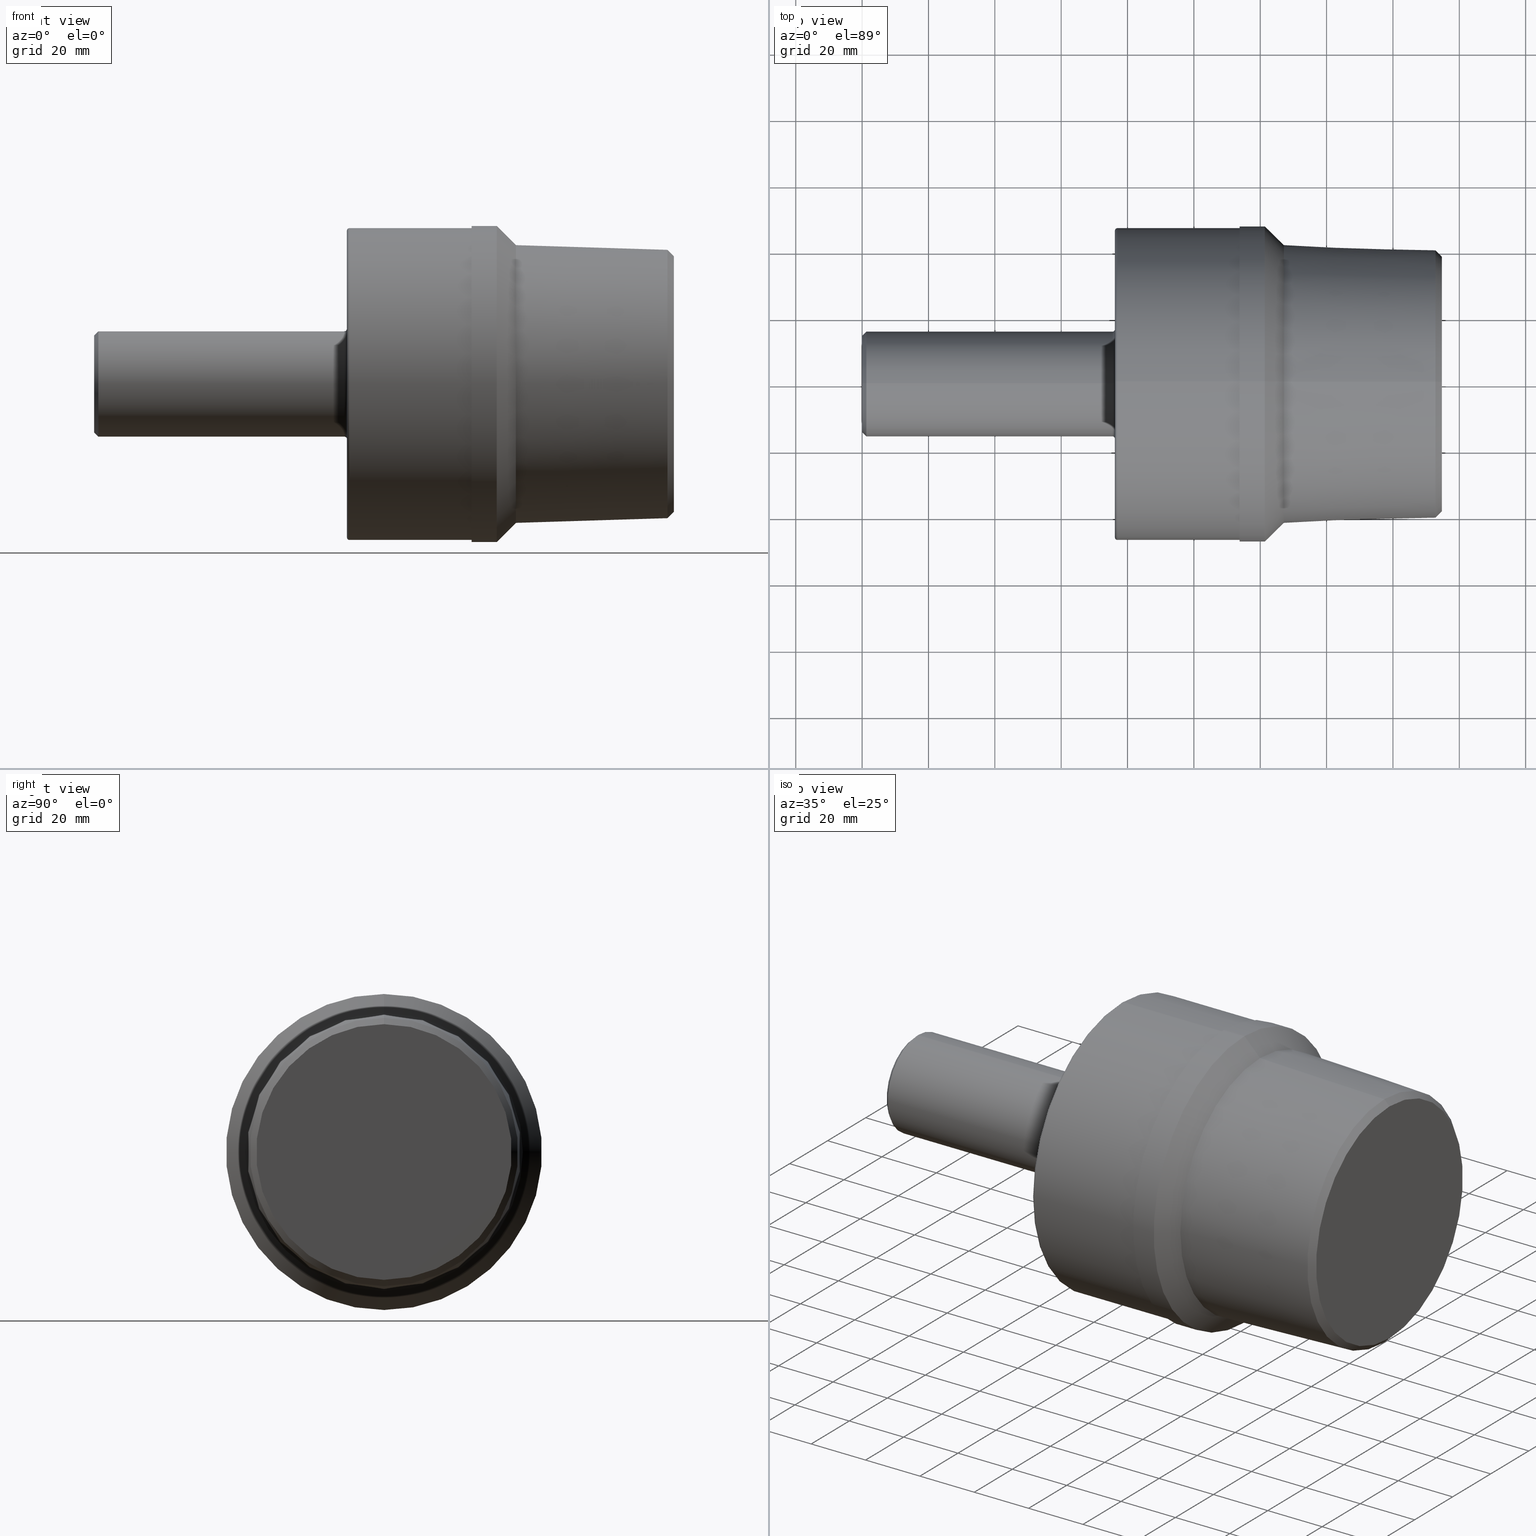
[diagram: canonical four-view strip — front | top / right | iso, engineering-drawing reading convention]
A machine part, canonical four-view strip (front | top / right | iso — engineering-drawing reading convention). The complete STEP part file that produces these views, byte-faithful:
ISO-10303-21;
HEADER;
FILE_DESCRIPTION (( 'STEP AP214' ),
    '1' );
FILE_NAME ('PRSS-11.STEP',
    '2019-03-07T22:15:26',
    ( '' ),
    ( '' ),
    'SwSTEP 2.0',
    'SolidWorks 2018',
    '' );
FILE_SCHEMA (( 'AUTOMOTIVE_DESIGN' ));
ENDSEC;

DATA;
#1 = CIRCLE ( 'NONE', #607, 1.820000000000000284 ) ;
#2 = CARTESIAN_POINT ( 'NONE',  ( 0.0000000000000000000, 7.346043824685398525E-17, 0.5748500000000001942 ) ) ;
#3 = ORIENTED_EDGE ( 'NONE', *, *, #405, .T. ) ;
#4 = EDGE_CURVE ( 'NONE', #147, #195, #303, .T. ) ;
#5 = LINE ( 'NONE', #283, #240 ) ;
#6 = AXIS2_PLACEMENT_3D ( 'NONE', #342, #203, #318 ) ;
#7 = CIRCLE ( 'NONE', #337, 1.647999999999999909 ) ;
#8 = AXIS2_PLACEMENT_3D ( 'NONE', #498, #500, #566 ) ;
#9 = LINE ( 'NONE', #271, #125 ) ;
#10 = EDGE_CURVE ( 'NONE', #487, #107, #369, .T. ) ;
#11 = FACE_OUTER_BOUND ( 'NONE', #471, .T. ) ;
#12 = CIRCLE ( 'NONE', #292, 0.5748500000000001942 ) ;
#13 = ORIENTED_EDGE ( 'NONE', *, *, #66, .T. ) ;
#14 = DIRECTION ( 'NONE',  ( 0.0000000000000000000, 0.0000000000000000000, 1.000000000000000000 ) ) ;
#15 = ORIENTED_EDGE ( 'NONE', *, *, #437, .T. ) ;
#16 = EDGE_CURVE ( 'NONE', #415, #177, #154, .T. ) ;
#17 = CARTESIAN_POINT ( 'NONE',  ( 0.05000000000000000278, 0.0000000000000000000, 0.0000000000000000000 ) ) ;
#18 = APPLICATION_PROTOCOL_DEFINITION ( 'draft international standard', 'automotive_design', 1998, #288 ) ;
#19 = EDGE_CURVE ( 'NONE', #107, #487, #553, .T. ) ;
#20 = ORIENTED_EDGE ( 'NONE', *, *, #395, .T. ) ;
#21 = EDGE_CURVE ( 'NONE', #46, #307, #250, .T. ) ;
#22 = DIRECTION ( 'NONE',  ( 0.0000000000000000000, 0.0000000000000000000, 1.000000000000000000 ) ) ;
#23 = DIRECTION ( 'NONE',  ( -1.000000000000000000, -0.0000000000000000000, -0.0000000000000000000 ) ) ;
#24 = DIRECTION ( 'NONE',  ( 0.0000000000000000000, 0.0000000000000000000, 1.000000000000000000 ) ) ;
#25 = CONICAL_SURFACE ( 'NONE', #380, 1.647999999999999909, 0.7853981633974507215 ) ;
#26 = CARTESIAN_POINT ( 'NONE',  ( 0.0000000000000000000, 0.0000000000000000000, 1.850000000000000311 ) ) ;
#27 = EDGE_LOOP ( 'NONE', ( #162, #241, #426, #131 ) ) ;
#28 = VECTOR ( 'NONE', #516, 39.37007874015748854 ) ;
#29 = DIRECTION ( 'NONE',  ( 0.0000000000000000000, 0.0000000000000000000, 1.000000000000000000 ) ) ;
#30 = ORIENTED_EDGE ( 'NONE', *, *, #323, .T. ) ;
#31 = CARTESIAN_POINT ( 'NONE',  ( 3.000000000000000444, 0.0000000000000000000, 1.820000000000000284 ) ) ;
#32 = ADVANCED_FACE ( 'NONE', ( #329 ), #158, .F. ) ;
#33 = FACE_OUTER_BOUND ( 'NONE', #276, .T. ) ;
#34 = DIRECTION ( 'NONE',  ( 0.0000000000000000000, 0.0000000000000000000, 1.000000000000000000 ) ) ;
#35 = CIRCLE ( 'NONE', #581, 0.02999999999999954439 ) ;
#36 = EDGE_CURVE ( 'NONE', #307, #177, #49, .T. ) ;
#37 = CARTESIAN_POINT ( 'NONE',  ( 0.05000000000000000278, 0.0000000000000000000, -0.6248500000000000165 ) ) ;
#38 = ADVANCED_FACE ( 'NONE', ( #399 ), #594, .F. ) ;
#39 = VERTEX_POINT ( 'NONE', #414 ) ;
#40 = ADVANCED_FACE ( 'NONE', ( #529 ), #517, .T. ) ;
#41 = DIRECTION ( 'NONE',  ( 0.0000000000000000000, 0.0000000000000000000, -1.000000000000000000 ) ) ;
#42 = DIRECTION ( 'NONE',  ( 0.7071067811865489050, 0.0000000000000000000, -0.7071067811865461294 ) ) ;
#43 = AXIS2_PLACEMENT_3D ( 'NONE', #351, #545, #221 ) ;
#44 =( GEOMETRIC_REPRESENTATION_CONTEXT ( 3 ) GLOBAL_UNCERTAINTY_ASSIGNED_CONTEXT ( ( #453 ) ) GLOBAL_UNIT_ASSIGNED_CONTEXT ( ( #384, #349, #382 ) ) REPRESENTATION_CONTEXT ( 'NONE', 'WORKASPACE' ) );
#45 = CARTESIAN_POINT ( 'NONE',  ( 4.778000000000000469, 0.0000000000000000000, 1.875000000000000000 ) ) ;
#46 = VERTEX_POINT ( 'NONE', #306 ) ;
#47 = VERTEX_POINT ( 'NONE', #604 ) ;
#48 = AXIS2_PLACEMENT_3D ( 'NONE', #181, #261, #34 ) ;
#49 = LINE ( 'NONE', #83, #28 ) ;
#50 = ORIENTED_EDGE ( 'NONE', *, *, #4, .T. ) ;
#51 = DIRECTION ( 'NONE',  ( -1.000000000000000000, -0.0000000000000000000, -0.0000000000000000000 ) ) ;
#52 = ORIENTED_EDGE ( 'NONE', *, *, #75, .F. ) ;
#53 = EDGE_CURVE ( 'NONE', #317, #434, #429, .T. ) ;
#54 = AXIS2_PLACEMENT_3D ( 'NONE', #257, #339, #291 ) ;
#55 = VECTOR ( 'NONE', #569, 39.37007874015748854 ) ;
#56 = ORIENTED_EDGE ( 'NONE', *, *, #19, .T. ) ;
#57 = ORIENTED_EDGE ( 'NONE', *, *, #577, .T. ) ;
#58 = EDGE_CURVE ( 'NONE', #487, #104, #417, .T. ) ;
#59 = ORIENTED_EDGE ( 'NONE', *, *, #323, .F. ) ;
#60 = AXIS2_PLACEMENT_3D ( 'NONE', #492, #114, #543 ) ;
#61 = ORIENTED_EDGE ( 'NONE', *, *, #556, .F. ) ;
#62 = CARTESIAN_POINT ( 'NONE',  ( 2.970000000000000195, 0.0000000000000000000, 0.6248500000000007937 ) ) ;
#63 = ORIENTED_EDGE ( 'NONE', *, *, #521, .F. ) ;
#64 = DIRECTION ( 'NONE',  ( 0.0000000000000000000, 0.0000000000000000000, 1.000000000000000000 ) ) ;
#65 = CIRCLE ( 'NONE', #60, 1.592061653312734970 ) ;
#66 = EDGE_CURVE ( 'NONE', #177, #415, #7, .T. ) ;
#67 = DIRECTION ( 'NONE',  ( -1.000000000000000000, -0.0000000000000000000, -0.0000000000000000000 ) ) ;
#68 = CYLINDRICAL_SURFACE ( 'NONE', #82, 0.6248500000000004606 ) ;
#69 = ORIENTED_EDGE ( 'NONE', *, *, #447, .F. ) ;
#70 = DIRECTION ( 'NONE',  ( -0.7071067811865457964, 8.659560562354953812E-17, -0.7071067811865492381 ) ) ;
#71 = ORIENTED_EDGE ( 'NONE', *, *, #437, .F. ) ;
#72 = PLANE ( 'NONE',  #514 ) ;
#73 = FACE_OUTER_BOUND ( 'NONE', #263, .T. ) ;
#74 = DIRECTION ( 'NONE',  ( -1.000000000000000000, -0.0000000000000000000, -0.0000000000000000000 ) ) ;
#75 = EDGE_CURVE ( 'NONE', #536, #434, #249, .T. ) ;
#76 = FILL_AREA_STYLE_COLOUR ( '', #230 ) ;
#77 = ORIENTED_EDGE ( 'NONE', *, *, #313, .F. ) ;
#78 = DIRECTION ( 'NONE',  ( -1.000000000000000000, -0.0000000000000000000, -0.0000000000000000000 ) ) ;
#79 = CARTESIAN_POINT ( 'NONE',  ( 3.030000000000000249, 0.0000000000000000000, 0.0000000000000000000 ) ) ;
#80 = ORIENTED_EDGE ( 'NONE', *, *, #525, .T. ) ;
#81 = EDGE_LOOP ( 'NONE', ( #580, #576, #568, #385 ) ) ;
#82 = AXIS2_PLACEMENT_3D ( 'NONE', #212, #134, #368 ) ;
#83 = CARTESIAN_POINT ( 'NONE',  ( 6.805000000000000604, 1.949713207774683978E-16, -1.592061653312734970 ) ) ;
#84 = CARTESIAN_POINT ( 'NONE',  ( 6.805000000000000604, 0.0000000000000000000, 0.0000000000000000000 ) ) ;
#85 = CARTESIAN_POINT ( 'NONE',  ( 3.030000000000000249, 2.228857174448183325E-16, -1.820000000000000284 ) ) ;
#86 = CARTESIAN_POINT ( 'NONE',  ( 4.778000000000000469, 0.0000000000000000000, 0.0000000000000000000 ) ) ;
#87 = ORIENTED_EDGE ( 'NONE', *, *, #225, .T. ) ;
#88 = ADVANCED_FACE ( 'NONE', ( #73 ), #115, .T. ) ;
#89 = FACE_OUTER_BOUND ( 'NONE', #81, .T. ) ;
#90 = DIRECTION ( 'NONE',  ( 0.0000000000000000000, 0.0000000000000000000, 1.000000000000000000 ) ) ;
#91 = AXIS2_PLACEMENT_3D ( 'NONE', #228, #457, #505 ) ;
#92 = CARTESIAN_POINT ( 'NONE',  ( 6.879999999999999893, 1.517061653312734126, 0.0000000000000000000 ) ) ;
#93 = DIRECTION ( 'NONE',  ( 0.0000000000000000000, 0.0000000000000000000, 1.000000000000000000 ) ) ;
#94 = AXIS2_PLACEMENT_3D ( 'NONE', #366, #353, #563 ) ;
#95 = AXIS2_PLACEMENT_3D ( 'NONE', #120, #155, #64 ) ;
#96 = DIRECTION ( 'NONE',  ( 0.0000000000000000000, 0.0000000000000000000, 1.000000000000000000 ) ) ;
#97 = ADVANCED_FACE ( 'NONE', ( #206 ), #477, .T. ) ;
#98 = CARTESIAN_POINT ( 'NONE',  ( 2.970000000000000195, 0.0000000000000000000, 0.0000000000000000000 ) ) ;
#99 = ORIENTED_EDGE ( 'NONE', *, *, #577, .F. ) ;
#100 = EDGE_LOOP ( 'NONE', ( #174, #191, #462, #528 ) ) ;
#101 = VECTOR ( 'NONE', #361, 39.37007874015748143 ) ;
#102 = AXIS2_PLACEMENT_3D ( 'NONE', #17, #328, #113 ) ;
#103 = CIRCLE ( 'NONE', #526, 0.6248500000000007937 ) ;
#104 = VERTEX_POINT ( 'NONE', #319 ) ;
#105 = ORIENTED_EDGE ( 'NONE', *, *, #473, .T. ) ;
#106 = CIRCLE ( 'NONE', #207, 1.592061653312734970 ) ;
#107 = VERTEX_POINT ( 'NONE', #45 ) ;
#108 = PRESENTATION_STYLE_ASSIGNMENT (( #484 ) ) ;
#109 = EDGE_LOOP ( 'NONE', ( #184, #57 ) ) ;
#110 = SURFACE_STYLE_USAGE ( .BOTH. , #284 ) ;
#111 = EDGE_LOOP ( 'NONE', ( #309, #259 ) ) ;
#112 =( GEOMETRIC_REPRESENTATION_CONTEXT ( 3 ) GLOBAL_UNCERTAINTY_ASSIGNED_CONTEXT ( ( #524 ) ) GLOBAL_UNIT_ASSIGNED_CONTEXT ( ( #411, #539, #443 ) ) REPRESENTATION_CONTEXT ( 'NONE', 'WORKASPACE' ) );
#113 = DIRECTION ( 'NONE',  ( 0.0000000000000000000, 0.0000000000000000000, 1.000000000000000000 ) ) ;
#114 = DIRECTION ( 'NONE',  ( -1.000000000000000000, -0.0000000000000000000, -0.0000000000000000000 ) ) ;
#115 = CONICAL_SURFACE ( 'NONE', #389, 1.517061653312734126, 0.7853981633974556065 ) ;
#116 = CIRCLE ( 'NONE', #54, 1.850000000000000311 ) ;
#117 = CARTESIAN_POINT ( 'NONE',  ( 4.479999999999999538, 0.0000000000000000000, 0.0000000000000000000 ) ) ;
#118 = CARTESIAN_POINT ( 'NONE',  ( 0.0000000000000000000, 0.0000000000000000000, 0.0000000000000000000 ) ) ;
#119 = MECHANICAL_DESIGN_GEOMETRIC_PRESENTATION_REPRESENTATION (  '', ( #334 ), #44 ) ;
#120 = CARTESIAN_POINT ( 'NONE',  ( 4.479999999999999538, 0.0000000000000000000, 0.0000000000000000000 ) ) ;
#121 = EDGE_CURVE ( 'NONE', #357, #371, #310, .T. ) ;
#122 = DIRECTION ( 'NONE',  ( -1.000000000000000000, -0.0000000000000000000, -0.0000000000000000000 ) ) ;
#123 = CARTESIAN_POINT ( 'NONE',  ( 5.004999999999999893, 0.0000000000000000000, 0.0000000000000000000 ) ) ;
#124 = ORIENTED_EDGE ( 'NONE', *, *, #58, .T. ) ;
#125 = VECTOR ( 'NONE', #370, 39.37007874015748143 ) ;
#126 = DIRECTION ( 'NONE',  ( 0.0000000000000000000, 0.0000000000000000000, -1.000000000000000000 ) ) ;
#127 = CARTESIAN_POINT ( 'NONE',  ( 6.879999999999999893, 0.0000000000000000000, 0.0000000000000000000 ) ) ;
#128 = CIRCLE ( 'NONE', #102, 0.6248500000000000165 ) ;
#129 = FILL_AREA_STYLE ('',( #76 ) ) ;
#130 = FACE_OUTER_BOUND ( 'NONE', #348, .T. ) ;
#131 = ORIENTED_EDGE ( 'NONE', *, *, #121, .F. ) ;
#132 = ORIENTED_EDGE ( 'NONE', *, *, #19, .F. ) ;
#133 = ADVANCED_FACE ( 'NONE', ( #11 ), #401, .T. ) ;
#134 = DIRECTION ( 'NONE',  ( -1.000000000000000000, -0.0000000000000000000, -0.0000000000000000000 ) ) ;
#135 = ORIENTED_EDGE ( 'NONE', *, *, #525, .F. ) ;
#136 = FACE_OUTER_BOUND ( 'NONE', #223, .T. ) ;
#137 = CARTESIAN_POINT ( 'NONE',  ( 2.970000000000000195, 8.019599564216449926E-17, -0.6548500000000007093 ) ) ;
#138 = AXIS2_PLACEMENT_3D ( 'NONE', #611, #122, #90 ) ;
#139 = DIRECTION ( 'NONE',  ( 0.0000000000000000000, 0.0000000000000000000, 1.000000000000000000 ) ) ;
#140 = DIRECTION ( 'NONE',  ( 1.000000000000000000, 0.0000000000000000000, 0.0000000000000000000 ) ) ;
#141 = LENGTH_MEASURE_WITH_UNIT ( LENGTH_MEASURE( 0.02539999999999999897 ), #490 );
#142 = ORIENTED_EDGE ( 'NONE', *, *, #266, .T. ) ;
#143 = ADVANCED_FACE ( 'NONE', ( #483 ), #373, .T. ) ;
#144 = DIRECTION ( 'NONE',  ( -1.000000000000000000, -0.0000000000000000000, -0.0000000000000000000 ) ) ;
#145 = VECTOR ( 'NONE', #42, 39.37007874015748143 ) ;
#146 = MECHANICAL_DESIGN_GEOMETRIC_PRESENTATION_REPRESENTATION (  '', ( #220 ), #112 ) ;
#147 = VERTEX_POINT ( 'NONE', #293 ) ;
#148 = CIRCLE ( 'NONE', #199, 0.6248500000000007937 ) ;
#149 = VERTEX_POINT ( 'NONE', #247 ) ;
#150 = DIMENSIONAL_EXPONENTS ( 1.000000000000000000, 0.0000000000000000000, 0.0000000000000000000, 0.0000000000000000000, 0.0000000000000000000, 0.0000000000000000000, 0.0000000000000000000 ) ;
#151 = CONICAL_SURFACE ( 'NONE', #362, 0.6248500000000000165, 0.7853981633974463916 ) ;
#152 = AXIS2_PLACEMENT_3D ( 'NONE', #214, #435, #29 ) ;
#153 = PRODUCT_DEFINITION ( 'UNKNOWN', '', #424, #531 ) ;
#154 = CIRCLE ( 'NONE', #605, 1.647999999999999909 ) ;
#155 = DIRECTION ( 'NONE',  ( -1.000000000000000000, -0.0000000000000000000, -0.0000000000000000000 ) ) ;
#156 = CARTESIAN_POINT ( 'NONE',  ( 4.479999999999999538, 0.0000000000000000000, 0.0000000000000000000 ) ) ;
#157 = CIRCLE ( 'NONE', #358, 1.850000000000000311 ) ;
#158 = TOROIDAL_SURFACE ( 'NONE', #612, 0.6548500000000007093, 0.02999999999999961031 ) ;
#159 = DIRECTION ( 'NONE',  ( 0.0000000000000000000, 0.0000000000000000000, -1.000000000000000000 ) ) ;
#160 = AXIS2_PLACEMENT_3D ( 'NONE', #86, #394, #542 ) ;
#161 = DIRECTION ( 'NONE',  ( 0.0000000000000000000, -1.224646799147356412E-16, 1.000000000000000000 ) ) ;
#162 = ORIENTED_EDGE ( 'NONE', *, *, #459, .T. ) ;
#163 = PRESENTATION_LAYER_ASSIGNMENT (  '', '', ( #220 ) ) ;
#164 = FACE_OUTER_BOUND ( 'NONE', #109, .T. ) ;
#165 = ORIENTED_EDGE ( 'NONE', *, *, #473, .F. ) ;
#166 = DIRECTION ( 'NONE',  ( -1.000000000000000000, -0.0000000000000000000, -0.0000000000000000000 ) ) ;
#167 = DIRECTION ( 'NONE',  ( 1.000000000000000000, 0.0000000000000000000, 0.0000000000000000000 ) ) ;
#168 = DIRECTION ( 'NONE',  ( 0.0000000000000000000, 0.0000000000000000000, 1.000000000000000000 ) ) ;
#169 = DIRECTION ( 'NONE',  ( -0.7071067811865423547, 8.659560562354995721E-17, -0.7071067811865526798 ) ) ;
#170 = DIRECTION ( 'NONE',  ( -1.000000000000000000, -0.0000000000000000000, -0.0000000000000000000 ) ) ;
#171 = AXIS2_PLACEMENT_3D ( 'NONE', #583, #218, #551 ) ;
#172 = ORIENTED_EDGE ( 'NONE', *, *, #344, .T. ) ;
#173 = VERTEX_POINT ( 'NONE', #295 ) ;
#174 = ORIENTED_EDGE ( 'NONE', *, *, #53, .F. ) ;
#175 = FACE_OUTER_BOUND ( 'NONE', #111, .T. ) ;
#176 = EDGE_CURVE ( 'NONE', #173, #46, #321, .T. ) ;
#177 = VERTEX_POINT ( 'NONE', #311 ) ;
#178 = CARTESIAN_POINT ( 'NONE',  ( 0.0000000000000000000, 0.0000000000000000000, 0.0000000000000000000 ) ) ;
#179 = CARTESIAN_POINT ( 'NONE',  ( 2.999999999999999556, 1.820000000000000284, 0.0000000000000000000 ) ) ;
#180 = EDGE_CURVE ( 'NONE', #107, #47, #9, .T. ) ;
#181 = CARTESIAN_POINT ( 'NONE',  ( 6.879999999999999893, 0.0000000000000000000, 0.0000000000000000000 ) ) ;
#182 = ADVANCED_BREP_SHAPE_REPRESENTATION ( 'PRSS-11', ( #341, #565 ), #449 ) ;
#183 = CARTESIAN_POINT ( 'NONE',  ( 0.0000000000000000000, 7.652205524472241080E-17, -0.6248500000000004606 ) ) ;
#184 = ORIENTED_EDGE ( 'NONE', *, *, #447, .T. ) ;
#185 = CONICAL_SURFACE ( 'NONE', #8, 1.517061653312734126, 0.7853981633974556065 ) ;
#186 = ADVANCED_FACE ( 'NONE', ( #175 ), #446, .F. ) ;
#187 = DIRECTION ( 'NONE',  ( -1.000000000000000000, -0.0000000000000000000, -0.0000000000000000000 ) ) ;
#188 = AXIS2_PLACEMENT_3D ( 'NONE', #502, #270, #402 ) ;
#189 = DIRECTION ( 'NONE',  ( -1.000000000000000000, -0.0000000000000000000, -0.0000000000000000000 ) ) ;
#190 = CARTESIAN_POINT ( 'NONE',  ( 6.805000000000000604, 0.0000000000000000000, 1.592061653312734970 ) ) ;
#191 = ORIENTED_EDGE ( 'NONE', *, *, #521, .T. ) ;
#192 = DIMENSIONAL_EXPONENTS ( 1.000000000000000000, 0.0000000000000000000, 0.0000000000000000000, 0.0000000000000000000, 0.0000000000000000000, 0.0000000000000000000, 0.0000000000000000000 ) ;
#193 = CYLINDRICAL_SURFACE ( 'NONE', #546, 0.6248500000000004606 ) ;
#194 = ORIENTED_EDGE ( 'NONE', *, *, #537, .F. ) ;
#195 = VERTEX_POINT ( 'NONE', #31 ) ;
#196 = CIRCLE ( 'NONE', #347, 0.6548500000000007093 ) ;
#197 = ORIENTED_EDGE ( 'NONE', *, *, #322, .F. ) ;
#198 = ORIENTED_EDGE ( 'NONE', *, *, #313, .T. ) ;
#199 = AXIS2_PLACEMENT_3D ( 'NONE', #481, #555, #290 ) ;
#200 = LINE ( 'NONE', #591, #541 ) ;
#201 = CARTESIAN_POINT ( 'NONE',  ( 5.004999999999999893, 0.0000000000000000000, 0.0000000000000000000 ) ) ;
#202 = EDGE_LOOP ( 'NONE', ( #105, #20 ) ) ;
#203 = DIRECTION ( 'NONE',  ( -1.000000000000000000, -0.0000000000000000000, -0.0000000000000000000 ) ) ;
#204 = LINE ( 'NONE', #350, #573 ) ;
#205 = ORIENTED_EDGE ( 'NONE', *, *, #405, .F. ) ;
#206 = FACE_OUTER_BOUND ( 'NONE', #602, .T. ) ;
#207 = AXIS2_PLACEMENT_3D ( 'NONE', #84, #78, #352 ) ;
#208 = FACE_OUTER_BOUND ( 'NONE', #422, .T. ) ;
#209 = DIRECTION ( 'NONE',  ( -0.0000000000000000000, 0.0000000000000000000, 1.000000000000000000 ) ) ;
#210 = AXIS2_PLACEMENT_3D ( 'NONE', #316, #74, #314 ) ;
#211 = DIRECTION ( 'NONE',  ( 0.0000000000000000000, 0.0000000000000000000, 1.000000000000000000 ) ) ;
#212 = CARTESIAN_POINT ( 'NONE',  ( 0.0000000000000000000, 0.0000000000000000000, 0.0000000000000000000 ) ) ;
#213 = AXIS2_PLACEMENT_3D ( 'NONE', #332, #345, #22 ) ;
#214 = CARTESIAN_POINT ( 'NONE',  ( 0.0000000000000000000, 0.0000000000000000000, 0.0000000000000000000 ) ) ;
#215 = DIRECTION ( 'NONE',  ( -1.000000000000000000, -0.0000000000000000000, -0.0000000000000000000 ) ) ;
#216 = ORIENTED_EDGE ( 'NONE', *, *, #395, .F. ) ;
#217 = DIRECTION ( 'NONE',  ( 0.0000000000000000000, 0.0000000000000000000, 1.000000000000000000 ) ) ;
#218 = DIRECTION ( 'NONE',  ( -1.000000000000000000, -0.0000000000000000000, -0.0000000000000000000 ) ) ;
#219 = CLOSED_SHELL ( 'NONE', ( #272, #598, #364, #227, #40, #315, #32, #233, #606, #38, #97, #557, #567, #613, #143, #408, #410, #460, #133, #506, #88, #186 ) ) ;
#220 = STYLED_ITEM ( 'NONE', ( #108 ), #182 ) ;
#221 = DIRECTION ( 'NONE',  ( 0.0000000000000000000, 0.0000000000000000000, 1.000000000000000000 ) ) ;
#222 = CIRCLE ( 'NONE', #138, 0.5748500000000001942 ) ;
#223 = EDGE_LOOP ( 'NONE', ( #508, #476, #69, #251 ) ) ;
#224 = APPLICATION_CONTEXT ( 'automotive_design' ) ;
#225 = EDGE_CURVE ( 'NONE', #46, #173, #381, .T. ) ;
#226 = DIRECTION ( 'NONE',  ( -1.000000000000000000, -0.0000000000000000000, -0.0000000000000000000 ) ) ;
#227 = ADVANCED_FACE ( 'NONE', ( #242 ), #520, .T. ) ;
#228 = CARTESIAN_POINT ( 'NONE',  ( 6.805000000000000604, 0.0000000000000000000, 0.0000000000000000000 ) ) ;
#229 = ORIENTED_EDGE ( 'NONE', *, *, #507, .F. ) ;
#230 = COLOUR_RGB ( '',0.7529411764705882248, 0.7529411764705882248, 0.7529411764705882248 ) ;
#231 = PRESENTATION_LAYER_ASSIGNMENT (  '', '', ( #334 ) ) ;
#232 = DIRECTION ( 'NONE',  ( 0.0000000000000000000, 0.0000000000000000000, 1.000000000000000000 ) ) ;
#233 = ADVANCED_FACE ( 'NONE', ( #503 ), #193, .T. ) ;
#234 = AXIS2_PLACEMENT_3D ( 'NONE', #458, #547, #93 ) ;
#235 = DIRECTION ( 'NONE',  ( 1.000000000000000000, 0.0000000000000000000, 0.0000000000000000000 ) ) ;
#236 = CIRCLE ( 'NONE', #376, 1.850000000000000311 ) ;
#237 = ORIENTED_EDGE ( 'NONE', *, *, #282, .F. ) ;
#238 = UNCERTAINTY_MEASURE_WITH_UNIT (LENGTH_MEASURE( 1.000000000000000082E-05 ), #312, 'distance_accuracy_value', 'NONE');
#239 = CARTESIAN_POINT ( 'NONE',  ( 2.970000000000000195, 7.652205524472246010E-17, -0.6248500000000007937 ) ) ;
#240 = VECTOR ( 'NONE', #70, 39.37007874015748143 ) ;
#241 = ORIENTED_EDGE ( 'NONE', *, *, #53, .T. ) ;
#242 = FACE_OUTER_BOUND ( 'NONE', #470, .T. ) ;
#243 = FACE_OUTER_BOUND ( 'NONE', #202, .T. ) ;
#244 = ORIENTED_EDGE ( 'NONE', *, *, #21, .F. ) ;
#245 = AXIS2_PLACEMENT_3D ( 'NONE', #548, #589, #338 ) ;
#246 = CARTESIAN_POINT ( 'NONE',  ( 0.05000000000000000278, 7.652205524472237382E-17, 0.6248500000000000165 ) ) ;
#247 = CARTESIAN_POINT ( 'NONE',  ( 6.805000000000000604, 0.0000000000000000000, 1.592061653312734970 ) ) ;
#248 = DIRECTION ( 'NONE',  ( -0.0000000000000000000, 1.000000000000000000, 1.224646799147353207E-16 ) ) ;
#249 = LINE ( 'NONE', #37, #145 ) ;
#250 = LINE ( 'NONE', #456, #550 ) ;
#251 = ORIENTED_EDGE ( 'NONE', *, *, #4, .F. ) ;
#252 = DIRECTION ( 'NONE',  ( 0.0000000000000000000, 0.0000000000000000000, -1.000000000000000000 ) ) ;
#253 = DIRECTION ( 'NONE',  ( -1.000000000000000000, -0.0000000000000000000, -0.0000000000000000000 ) ) ;
#254 = DIRECTION ( 'NONE',  ( 1.000000000000000000, 0.0000000000000000000, 0.0000000000000000000 ) ) ;
#255 = AXIS2_PLACEMENT_3D ( 'NONE', #79, #67, #24 ) ;
#256 = DIRECTION ( 'NONE',  ( -1.000000000000000000, -0.0000000000000000000, -0.0000000000000000000 ) ) ;
#257 = CARTESIAN_POINT ( 'NONE',  ( 3.030000000000000249, 0.0000000000000000000, 0.0000000000000000000 ) ) ;
#258 = FACE_OUTER_BOUND ( 'NONE', #582, .T. ) ;
#259 = ORIENTED_EDGE ( 'NONE', *, *, #225, .F. ) ;
#260 = PRODUCT_DEFINITION_SHAPE ( 'NONE', 'NONE',  #153 ) ;
#261 = DIRECTION ( 'NONE',  ( -1.000000000000000000, -0.0000000000000000000, -0.0000000000000000000 ) ) ;
#262 = CIRCLE ( 'NONE', #95, 1.850000000000000311 ) ;
#263 = EDGE_LOOP ( 'NONE', ( #244, #87, #575, #510 ) ) ;
#264 = CARTESIAN_POINT ( 'NONE',  ( 3.030000000000000249, 2.265596578422603594E-16, -1.850000000000000311 ) ) ;
#265 = PRESENTATION_STYLE_ASSIGNMENT (( #110 ) ) ;
#266 = EDGE_CURVE ( 'NONE', #297, #371, #379, .T. ) ;
#267 = CARTESIAN_POINT ( 'NONE',  ( 3.000000000000000444, 0.0000000000000000000, 0.0000000000000000000 ) ) ;
#268 = AXIS2_PLACEMENT_3D ( 'NONE', #85, #365, #463 ) ;
#269 = ORIENTED_EDGE ( 'NONE', *, *, #180, .F. ) ;
#270 = DIRECTION ( 'NONE',  ( -1.000000000000000000, -0.0000000000000000000, -0.0000000000000000000 ) ) ;
#271 = CARTESIAN_POINT ( 'NONE',  ( 0.0000000000000000000, 0.0000000000000000000, 1.875000000000000000 ) ) ;
#272 = ADVANCED_FACE ( 'NONE', ( #33 ), #185, .T. ) ;
#273 = CARTESIAN_POINT ( 'NONE',  ( 4.479999999999999538, 2.265596578422603594E-16, -1.850000000000000311 ) ) ;
#274 = DIRECTION ( 'NONE',  ( 0.0000000000000000000, 0.0000000000000000000, -1.000000000000000000 ) ) ;
#275 = ORIENTED_EDGE ( 'NONE', *, *, #266, .F. ) ;
#276 = EDGE_LOOP ( 'NONE', ( #482, #407, #59, #61 ) ) ;
#277 = AXIS2_PLACEMENT_3D ( 'NONE', #156, #586, #493 ) ;
#278 = SURFACE_STYLE_FILL_AREA ( #129 ) ;
#279 = VERTEX_POINT ( 'NONE', #608 ) ;
#280 = ORIENTED_EDGE ( 'NONE', *, *, #377, .T. ) ;
#281 = EDGE_LOOP ( 'NONE', ( #428, #142, #421, #52 ) ) ;
#282 = EDGE_CURVE ( 'NONE', #287, #527, #200, .T. ) ;
#283 = CARTESIAN_POINT ( 'NONE',  ( 5.004999999999999893, 2.018217924994838300E-16, -1.647999999999999909 ) ) ;
#284 = SURFACE_SIDE_STYLE ('',( #378 ) ) ;
#285 = CARTESIAN_POINT ( 'NONE',  ( 4.479999999999999538, 1.850000000000000311, 0.0000000000000000000 ) ) ;
#286 = FACE_OUTER_BOUND ( 'NONE', #281, .T. ) ;
#287 = VERTEX_POINT ( 'NONE', #273 ) ;
#288 = APPLICATION_CONTEXT ( 'automotive_design' ) ;
#289 = AXIS2_PLACEMENT_3D ( 'NONE', #178, #166, #168 ) ;
#290 = DIRECTION ( 'NONE',  ( 0.0000000000000000000, 0.0000000000000000000, 1.000000000000000000 ) ) ;
#291 = DIRECTION ( 'NONE',  ( 0.0000000000000000000, 0.0000000000000000000, 1.000000000000000000 ) ) ;
#292 = AXIS2_PLACEMENT_3D ( 'NONE', #298, #253, #335 ) ;
#293 = CARTESIAN_POINT ( 'NONE',  ( 3.030000000000000249, 0.0000000000000000000, 1.850000000000000311 ) ) ;
#294 = CARTESIAN_POINT ( 'NONE',  ( 5.004999999999999893, 0.0000000000000000000, 1.647999999999999909 ) ) ;
#295 = CARTESIAN_POINT ( 'NONE',  ( 6.879999999999999893, 0.0000000000000000000, 1.517061653312734126 ) ) ;
#296 = EDGE_CURVE ( 'NONE', #317, #39, #301, .T. ) ;
#297 = VERTEX_POINT ( 'NONE', #2 ) ;
#298 = CARTESIAN_POINT ( 'NONE',  ( 0.0000000000000000000, 0.0000000000000000000, 0.0000000000000000000 ) ) ;
#299 = DIRECTION ( 'NONE',  ( -0.7071067811865423547, 0.0000000000000000000, 0.7071067811865526798 ) ) ;
#300 = VECTOR ( 'NONE', #412, 39.37007874015748143 ) ;
#301 = CIRCLE ( 'NONE', #585, 0.02999999999999954439 ) ;
#302 = DIRECTION ( 'NONE',  ( -1.000000000000000000, 0.0000000000000000000, -0.0000000000000000000 ) ) ;
#303 = CIRCLE ( 'NONE', #423, 0.02999999999999995379 ) ;
#304 = FILL_AREA_STYLE ('',( #590 ) ) ;
#305 = LENGTH_MEASURE_WITH_UNIT ( LENGTH_MEASURE( 0.02539999999999999897 ), #396 );
#306 = CARTESIAN_POINT ( 'NONE',  ( 6.879999999999999893, 1.903788952806657656E-16, -1.517061653312734126 ) ) ;
#307 = VERTEX_POINT ( 'NONE', #494 ) ;
#308 = FACE_OUTER_BOUND ( 'NONE', #100, .T. ) ;
#309 = ORIENTED_EDGE ( 'NONE', *, *, #176, .F. ) ;
#310 = LINE ( 'NONE', #340, #540 ) ;
#311 = CARTESIAN_POINT ( 'NONE',  ( 5.004999999999999893, 2.157215336698062520E-16, -1.647999999999999909 ) ) ;
#312 =( CONVERSION_BASED_UNIT ( 'INCH', #141 ) LENGTH_UNIT ( ) NAMED_UNIT ( #192 ) );
#313 = EDGE_CURVE ( 'NONE', #177, #487, #5, .T. ) ;
#314 = DIRECTION ( 'NONE',  ( 0.0000000000000000000, 0.0000000000000000000, 1.000000000000000000 ) ) ;
#315 = ADVANCED_FACE ( 'NONE', ( #136 ), #465, .T. ) ;
#316 = CARTESIAN_POINT ( 'NONE',  ( 5.004999999999999893, 0.0000000000000000000, 0.0000000000000000000 ) ) ;
#317 = VERTEX_POINT ( 'NONE', #239 ) ;
#318 = DIRECTION ( 'NONE',  ( 0.0000000000000000000, 0.0000000000000000000, 1.000000000000000000 ) ) ;
#319 = CARTESIAN_POINT ( 'NONE',  ( 4.479999999999999538, 2.296212748401287479E-16, -1.875000000000000000 ) ) ;
#320 = VECTOR ( 'NONE', #544, 39.37007874015748143 ) ;
#321 = CIRCLE ( 'NONE', #48, 1.517061653312734126 ) ;
#322 = EDGE_CURVE ( 'NONE', #279, #147, #356, .T. ) ;
#323 = EDGE_CURVE ( 'NONE', #149, #307, #106, .T. ) ;
#324 = AXIS2_PLACEMENT_3D ( 'NONE', #372, #445, #431 ) ;
#325 = DIRECTION ( 'NONE',  ( 0.0000000000000000000, 0.0000000000000000000, 1.000000000000000000 ) ) ;
#326 = EDGE_LOOP ( 'NONE', ( #461, #205 ) ) ;
#327 = ORIENTED_EDGE ( 'NONE', *, *, #296, .T. ) ;
#328 = DIRECTION ( 'NONE',  ( -1.000000000000000000, -0.0000000000000000000, -0.0000000000000000000 ) ) ;
#329 = FACE_OUTER_BOUND ( 'NONE', #442, .T. ) ;
#330 = DIRECTION ( 'NONE',  ( 0.0000000000000000000, 0.0000000000000000000, 1.000000000000000000 ) ) ;
#331 = EDGE_LOOP ( 'NONE', ( #172, #398, #609, #197 ) ) ;
#332 = CARTESIAN_POINT ( 'NONE',  ( 0.05000000000000000278, 0.0000000000000000000, 0.0000000000000000000 ) ) ;
#333 = CIRCLE ( 'NONE', #6, 0.6548500000000007093 ) ;
#334 = STYLED_ITEM ( 'NONE', ( #265 ), #341 ) ;
#335 = DIRECTION ( 'NONE',  ( 0.0000000000000000000, 0.0000000000000000000, 1.000000000000000000 ) ) ;
#336 = SURFACE_SIDE_STYLE ('',( #278 ) ) ;
#337 = AXIS2_PLACEMENT_3D ( 'NONE', #123, #23, #554 ) ;
#338 = DIRECTION ( 'NONE',  ( 0.0000000000000000000, 0.0000000000000000000, 1.000000000000000000 ) ) ;
#339 = DIRECTION ( 'NONE',  ( -1.000000000000000000, -0.0000000000000000000, -0.0000000000000000000 ) ) ;
#340 = CARTESIAN_POINT ( 'NONE',  ( 0.0000000000000000000, 0.0000000000000000000, 0.6248500000000004606 ) ) ;
#341 = MANIFOLD_SOLID_BREP ( '2DCA62FF-12D9-4292-ACF0-65A0EE5BC108-GAAFaceID11', #219 ) ;
#342 = CARTESIAN_POINT ( 'NONE',  ( 2.999999999999999556, 0.0000000000000000000, 0.0000000000000000000 ) ) ;
#343 = DIRECTION ( 'NONE',  ( 0.0000000000000000000, -1.000000000000000000, 0.0000000000000000000 ) ) ;
#344 = EDGE_CURVE ( 'NONE', #279, #287, #262, .T. ) ;
#345 = DIRECTION ( 'NONE',  ( -1.000000000000000000, -0.0000000000000000000, -0.0000000000000000000 ) ) ;
#346 = DIRECTION ( 'NONE',  ( 0.0000000000000000000, -1.000000000000000000, 0.0000000000000000000 ) ) ;
#347 = AXIS2_PLACEMENT_3D ( 'NONE', #511, #413, #532 ) ;
#348 = EDGE_LOOP ( 'NONE', ( #441, #416, #359, #216 ) ) ;
#349 =( NAMED_UNIT ( * ) PLANE_ANGLE_UNIT ( ) SI_UNIT ( $, .RADIAN. ) );
#350 = CARTESIAN_POINT ( 'NONE',  ( 6.879999999999999893, 0.0000000000000000000, 1.517061653312734126 ) ) ;
#351 = CARTESIAN_POINT ( 'NONE',  ( 6.879999999999999893, 0.0000000000000000000, 0.0000000000000000000 ) ) ;
#352 = DIRECTION ( 'NONE',  ( 0.0000000000000000000, 0.0000000000000000000, 1.000000000000000000 ) ) ;
#353 = DIRECTION ( 'NONE',  ( 1.000000000000000000, 0.0000000000000000000, 0.0000000000000000000 ) ) ;
#354 = CIRCLE ( 'NONE', #403, 1.875000000000000000 ) ;
#355 = ORIENTED_EDGE ( 'NONE', *, *, #409, .T. ) ;
#356 = LINE ( 'NONE', #26, #467 ) ;
#357 = VERTEX_POINT ( 'NONE', #62 ) ;
#358 = AXIS2_PLACEMENT_3D ( 'NONE', #117, #170, #211 ) ;
#359 = ORIENTED_EDGE ( 'NONE', *, *, #180, .T. ) ;
#360 = EDGE_CURVE ( 'NONE', #371, #434, #128, .T. ) ;
#361 = DIRECTION ( 'NONE',  ( 0.7071067811865489050, 8.659560562354915602E-17, 0.7071067811865461294 ) ) ;
#362 = AXIS2_PLACEMENT_3D ( 'NONE', #595, #561, #159 ) ;
#363 = DIRECTION ( 'NONE',  ( 0.0000000000000000000, 0.0000000000000000000, 1.000000000000000000 ) ) ;
#364 = ADVANCED_FACE ( 'NONE', ( #208 ), #25, .T. ) ;
#365 = DIRECTION ( 'NONE',  ( -0.0000000000000000000, 1.000000000000000000, 1.224646799147353207E-16 ) ) ;
#366 = CARTESIAN_POINT ( 'NONE',  ( 0.0000000000000000000, 0.0000000000000000000, 0.0000000000000000000 ) ) ;
#367 = VECTOR ( 'NONE', #51, 39.37007874015748143 ) ;
#368 = DIRECTION ( 'NONE',  ( 0.0000000000000000000, 0.0000000000000000000, 1.000000000000000000 ) ) ;
#369 = CIRCLE ( 'NONE', #562, 1.875000000000000000 ) ;
#370 = DIRECTION ( 'NONE',  ( -1.000000000000000000, -0.0000000000000000000, -0.0000000000000000000 ) ) ;
#371 = VERTEX_POINT ( 'NONE', #246 ) ;
#372 = CARTESIAN_POINT ( 'NONE',  ( 2.970000000000000195, 0.0000000000000000000, 0.0000000000000000000 ) ) ;
#373 = TOROIDAL_SURFACE ( 'NONE', #234, 1.820000000000000284, 0.02999999999999995379 ) ;
#374 = CYLINDRICAL_SURFACE ( 'NONE', #171, 1.850000000000000311 ) ;
#375 = COLOUR_RGB ( '',0.7529411764705882248, 0.7529411764705882248, 0.7529411764705882248 ) ;
#376 = AXIS2_PLACEMENT_3D ( 'NONE', #400, #501, #451 ) ;
#377 = EDGE_CURVE ( 'NONE', #307, #149, #65, .T. ) ;
#378 = SURFACE_STYLE_FILL_AREA ( #304 ) ;
#379 = LINE ( 'NONE', #509, #101 ) ;
#380 = AXIS2_PLACEMENT_3D ( 'NONE', #201, #560, #14 ) ;
#381 = CIRCLE ( 'NONE', #43, 1.517061653312734126 ) ;
#382 =( NAMED_UNIT ( * ) SI_UNIT ( $, .STERADIAN. ) SOLID_ANGLE_UNIT ( ) );
#383 = CIRCLE ( 'NONE', #277, 1.875000000000000000 ) ;
#384 =( CONVERSION_BASED_UNIT ( 'INCH', #305 ) LENGTH_UNIT ( ) NAMED_UNIT ( #150 ) );
#385 = ORIENTED_EDGE ( 'NONE', *, *, #518, .T. ) ;
#386 = CARTESIAN_POINT ( 'NONE',  ( 2.999999999999999556, 0.0000000000000000000, 0.6548500000000007093 ) ) ;
#387 = FACE_BOUND ( 'NONE', #392, .T. ) ;
#388 = DIRECTION ( 'NONE',  ( 0.0000000000000000000, 0.0000000000000000000, -1.000000000000000000 ) ) ;
#389 = AXIS2_PLACEMENT_3D ( 'NONE', #127, #189, #363 ) ;
#390 = CARTESIAN_POINT ( 'NONE',  ( 4.778000000000000469, 0.0000000000000000000, 0.0000000000000000000 ) ) ;
#391 = CARTESIAN_POINT ( 'NONE',  ( 5.004999999999999893, 0.0000000000000000000, 1.647999999999999909 ) ) ;
#392 = EDGE_LOOP ( 'NONE', ( #538, #519 ) ) ;
#393 = CARTESIAN_POINT ( 'NONE',  ( 3.000000000000000444, 2.247226876435393459E-16, -1.820000000000000284 ) ) ;
#394 = DIRECTION ( 'NONE',  ( -1.000000000000000000, -0.0000000000000000000, -0.0000000000000000000 ) ) ;
#395 = EDGE_CURVE ( 'NONE', #104, #47, #383, .T. ) ;
#396 =( LENGTH_UNIT ( ) NAMED_UNIT ( * ) SI_UNIT ( $, .METRE. ) );
#397 = CARTESIAN_POINT ( 'NONE',  ( 2.970000000000000195, 0.0000000000000000000, 0.0000000000000000000 ) ) ;
#398 = ORIENTED_EDGE ( 'NONE', *, *, #282, .T. ) ;
#399 = FACE_OUTER_BOUND ( 'NONE', #450, .T. ) ;
#400 = CARTESIAN_POINT ( 'NONE',  ( 3.030000000000000249, 0.0000000000000000000, 0.0000000000000000000 ) ) ;
#401 = CONICAL_SURFACE ( 'NONE', #210, 1.647999999999999909, 0.7853981633974507215 ) ;
#402 = DIRECTION ( 'NONE',  ( 0.0000000000000000000, 0.0000000000000000000, 1.000000000000000000 ) ) ;
#403 = AXIS2_PLACEMENT_3D ( 'NONE', #440, #486, #496 ) ;
#404 = ORIENTED_EDGE ( 'NONE', *, *, #593, .T. ) ;
#405 = EDGE_CURVE ( 'NONE', #287, #279, #157, .T. ) ;
#406 = FACE_OUTER_BOUND ( 'NONE', #427, .T. ) ;
#407 = ORIENTED_EDGE ( 'NONE', *, *, #21, .T. ) ;
#408 = ADVANCED_FACE ( 'NONE', ( #258 ), #374, .T. ) ;
#409 = EDGE_CURVE ( 'NONE', #434, #371, #495, .T. ) ;
#410 = ADVANCED_FACE ( 'NONE', ( #513, #243 ), #425, .F. ) ;
#411 =( CONVERSION_BASED_UNIT ( 'INCH', #579 ) LENGTH_UNIT ( ) NAMED_UNIT ( #466 ) );
#412 = DIRECTION ( 'NONE',  ( -1.000000000000000000, -0.0000000000000000000, -0.0000000000000000000 ) ) ;
#413 = DIRECTION ( 'NONE',  ( -1.000000000000000000, -0.0000000000000000000, -0.0000000000000000000 ) ) ;
#414 = CARTESIAN_POINT ( 'NONE',  ( 2.999999999999999556, 8.019599564216449926E-17, -0.6548500000000007093 ) ) ;
#415 = VERTEX_POINT ( 'NONE', #391 ) ;
#416 = ORIENTED_EDGE ( 'NONE', *, *, #10, .T. ) ;
#417 = LINE ( 'NONE', #464, #367 ) ;
#418 = LINE ( 'NONE', #190, #55 ) ;
#419 = ORIENTED_EDGE ( 'NONE', *, *, #322, .T. ) ;
#420 = ORIENTED_EDGE ( 'NONE', *, *, #596, .T. ) ;
#421 = ORIENTED_EDGE ( 'NONE', *, *, #360, .T. ) ;
#422 = EDGE_LOOP ( 'NONE', ( #480, #198, #132, #135 ) ) ;
#423 = AXIS2_PLACEMENT_3D ( 'NONE', #430, #343, #252 ) ;
#424 = PRODUCT_DEFINITION_FORMATION_WITH_SPECIFIED_SOURCE ( 'ANY', '', #597, .NOT_KNOWN. ) ;
#425 = PLANE ( 'NONE',  #444 ) ;
#426 = ORIENTED_EDGE ( 'NONE', *, *, #360, .F. ) ;
#427 = EDGE_LOOP ( 'NONE', ( #30, #574, #588, #439 ) ) ;
#428 = ORIENTED_EDGE ( 'NONE', *, *, #570, .F. ) ;
#429 = LINE ( 'NONE', #183, #300 ) ;
#430 = CARTESIAN_POINT ( 'NONE',  ( 3.030000000000000249, 0.0000000000000000000, 1.820000000000000284 ) ) ;
#431 = DIRECTION ( 'NONE',  ( 0.0000000000000000000, 0.0000000000000000000, 1.000000000000000000 ) ) ;
#432 = PRODUCT_RELATED_PRODUCT_CATEGORY ( 'part', '', ( #597 ) ) ;
#433 = TOROIDAL_SURFACE ( 'NONE', #324, 0.6548500000000007093, 0.02999999999999961031 ) ;
#434 = VERTEX_POINT ( 'NONE', #578 ) ;
#435 = DIRECTION ( 'NONE',  ( -1.000000000000000000, -0.0000000000000000000, -0.0000000000000000000 ) ) ;
#436 = DIRECTION ( 'NONE',  ( -1.000000000000000000, -0.0000000000000000000, -0.0000000000000000000 ) ) ;
#437 = EDGE_CURVE ( 'NONE', #536, #297, #12, .T. ) ;
#438 = DIRECTION ( 'NONE',  ( -1.000000000000000000, -0.0000000000000000000, -0.0000000000000000000 ) ) ;
#439 = ORIENTED_EDGE ( 'NONE', *, *, #596, .F. ) ;
#440 = CARTESIAN_POINT ( 'NONE',  ( 4.479999999999999538, 0.0000000000000000000, 0.0000000000000000000 ) ) ;
#441 = ORIENTED_EDGE ( 'NONE', *, *, #58, .F. ) ;
#442 = EDGE_LOOP ( 'NONE', ( #63, #327, #404, #488 ) ) ;
#443 =( NAMED_UNIT ( * ) SI_UNIT ( $, .STERADIAN. ) SOLID_ANGLE_UNIT ( ) );
#444 = AXIS2_PLACEMENT_3D ( 'NONE', #285, #167, #126 ) ;
#445 = DIRECTION ( 'NONE',  ( -1.000000000000000000, -0.0000000000000000000, -0.0000000000000000000 ) ) ;
#446 = PLANE ( 'NONE',  #489 ) ;
#447 = EDGE_CURVE ( 'NONE', #195, #535, #1, .T. ) ;
#448 = CONICAL_SURFACE ( 'NONE', #245, 1.592061653312734970, 0.03106686068549932567 ) ;
#449 =( GEOMETRIC_REPRESENTATION_CONTEXT ( 3 ) GLOBAL_UNCERTAINTY_ASSIGNED_CONTEXT ( ( #238 ) ) GLOBAL_UNIT_ASSIGNED_CONTEXT ( ( #312, #533, #603 ) ) REPRESENTATION_CONTEXT ( 'NONE', 'WORKASPACE' ) );
#450 = EDGE_LOOP ( 'NONE', ( #15, #474 ) ) ;
#451 = DIRECTION ( 'NONE',  ( 0.0000000000000000000, 0.0000000000000000000, 1.000000000000000000 ) ) ;
#452 = CARTESIAN_POINT ( 'NONE',  ( 0.0000000000000000000, 0.0000000000000000000, 0.0000000000000000000 ) ) ;
#453 = UNCERTAINTY_MEASURE_WITH_UNIT (LENGTH_MEASURE( 1.000000000000000082E-05 ), #384, 'distance_accuracy_value', 'NONE');
#454 = CARTESIAN_POINT ( 'NONE',  ( 0.0000000000000000000, 0.0000000000000000000, -0.5748500000000001942 ) ) ;
#455 = AXIS2_PLACEMENT_3D ( 'NONE', #584, #438, #330 ) ;
#456 = CARTESIAN_POINT ( 'NONE',  ( 6.879999999999999893, 1.857864697838631581E-16, -1.517061653312734126 ) ) ;
#457 = DIRECTION ( 'NONE',  ( -1.000000000000000000, -0.0000000000000000000, -0.0000000000000000000 ) ) ;
#458 = CARTESIAN_POINT ( 'NONE',  ( 3.030000000000000249, 0.0000000000000000000, 0.0000000000000000000 ) ) ;
#459 = EDGE_CURVE ( 'NONE', #357, #317, #148, .T. ) ;
#460 = ADVANCED_FACE ( 'NONE', ( #130 ), #600, .T. ) ;
#461 = ORIENTED_EDGE ( 'NONE', *, *, #344, .F. ) ;
#462 = ORIENTED_EDGE ( 'NONE', *, *, #121, .T. ) ;
#463 = DIRECTION ( 'NONE',  ( 0.0000000000000000000, -1.224646799147349756E-16, 1.000000000000000000 ) ) ;
#464 = CARTESIAN_POINT ( 'NONE',  ( 0.0000000000000000000, 2.296212748401287479E-16, -1.875000000000000000 ) ) ;
#465 = TOROIDAL_SURFACE ( 'NONE', #255, 1.820000000000000284, 0.02999999999999995379 ) ;
#466 = DIMENSIONAL_EXPONENTS ( 1.000000000000000000, 0.0000000000000000000, 0.0000000000000000000, 0.0000000000000000000, 0.0000000000000000000, 0.0000000000000000000, 0.0000000000000000000 ) ;
#467 = VECTOR ( 'NONE', #215, 39.37007874015748143 ) ;
#468 = AXIS2_PLACEMENT_3D ( 'NONE', #558, #140, #388 ) ;
#469 = LINE ( 'NONE', #294, #320 ) ;
#470 = EDGE_LOOP ( 'NONE', ( #56, #124, #165, #269 ) ) ;
#471 = EDGE_LOOP ( 'NONE', ( #77, #13, #80, #572 ) ) ;
#472 = EDGE_CURVE ( 'NONE', #147, #527, #236, .T. ) ;
#473 = EDGE_CURVE ( 'NONE', #47, #104, #354, .T. ) ;
#474 = ORIENTED_EDGE ( 'NONE', *, *, #570, .T. ) ;
#475 = CARTESIAN_POINT ( 'NONE',  ( 4.778000000000000469, 2.296212748401287479E-16, -1.875000000000000000 ) ) ;
#476 = ORIENTED_EDGE ( 'NONE', *, *, #507, .T. ) ;
#477 = CONICAL_SURFACE ( 'NONE', #468, 0.6248500000000000165, 0.7853981633974463916 ) ;
#478 = APPLICATION_PROTOCOL_DEFINITION ( 'draft international standard', 'automotive_design', 1998, #224 ) ;
#479 = FACE_OUTER_BOUND ( 'NONE', #523, .T. ) ;
#480 = ORIENTED_EDGE ( 'NONE', *, *, #16, .T. ) ;
#481 = CARTESIAN_POINT ( 'NONE',  ( 2.970000000000000195, 0.0000000000000000000, 0.0000000000000000000 ) ) ;
#482 = ORIENTED_EDGE ( 'NONE', *, *, #176, .T. ) ;
#483 = FACE_OUTER_BOUND ( 'NONE', #564, .T. ) ;
#484 = SURFACE_STYLE_USAGE ( .BOTH. , #336 ) ;
#485 = DIRECTION ( 'NONE',  ( 0.0000000000000000000, 0.0000000000000000000, 1.000000000000000000 ) ) ;
#486 = DIRECTION ( 'NONE',  ( -1.000000000000000000, -0.0000000000000000000, -0.0000000000000000000 ) ) ;
#487 = VERTEX_POINT ( 'NONE', #475 ) ;
#488 = ORIENTED_EDGE ( 'NONE', *, *, #601, .F. ) ;
#489 = AXIS2_PLACEMENT_3D ( 'NONE', #92, #302, #209 ) ;
#490 =( LENGTH_UNIT ( ) NAMED_UNIT ( * ) SI_UNIT ( $, .METRE. ) );
#491 = CARTESIAN_POINT ( 'NONE',  ( 5.004999999999999893, 0.0000000000000000000, 0.0000000000000000000 ) ) ;
#492 = CARTESIAN_POINT ( 'NONE',  ( 6.805000000000000604, 0.0000000000000000000, 0.0000000000000000000 ) ) ;
#493 = DIRECTION ( 'NONE',  ( 0.0000000000000000000, 0.0000000000000000000, 1.000000000000000000 ) ) ;
#494 = CARTESIAN_POINT ( 'NONE',  ( 6.805000000000000604, 1.983965566384761139E-16, -1.592061653312734970 ) ) ;
#495 = CIRCLE ( 'NONE', #213, 0.6248500000000000165 ) ;
#496 = DIRECTION ( 'NONE',  ( 0.0000000000000000000, 0.0000000000000000000, 1.000000000000000000 ) ) ;
#497 = DIRECTION ( 'NONE',  ( 0.0000000000000000000, 0.0000000000000000000, 1.000000000000000000 ) ) ;
#498 = CARTESIAN_POINT ( 'NONE',  ( 6.879999999999999893, 0.0000000000000000000, 0.0000000000000000000 ) ) ;
#499 = ORIENTED_EDGE ( 'NONE', *, *, #537, .T. ) ;
#500 = DIRECTION ( 'NONE',  ( -1.000000000000000000, -0.0000000000000000000, -0.0000000000000000000 ) ) ;
#501 = DIRECTION ( 'NONE',  ( -1.000000000000000000, -0.0000000000000000000, -0.0000000000000000000 ) ) ;
#502 = CARTESIAN_POINT ( 'NONE',  ( 3.000000000000000444, 0.0000000000000000000, 0.0000000000000000000 ) ) ;
#503 = FACE_OUTER_BOUND ( 'NONE', #27, .T. ) ;
#504 = DIRECTION ( 'NONE',  ( -1.000000000000000000, -0.0000000000000000000, -0.0000000000000000000 ) ) ;
#505 = DIRECTION ( 'NONE',  ( 0.0000000000000000000, 0.0000000000000000000, 1.000000000000000000 ) ) ;
#506 = ADVANCED_FACE ( 'NONE', ( #479 ), #448, .T. ) ;
#507 = EDGE_CURVE ( 'NONE', #527, #535, #587, .T. ) ;
#508 = ORIENTED_EDGE ( 'NONE', *, *, #472, .T. ) ;
#509 = CARTESIAN_POINT ( 'NONE',  ( 0.05000000000000000278, 7.652205524472237382E-17, 0.6248500000000000165 ) ) ;
#510 = ORIENTED_EDGE ( 'NONE', *, *, #377, .F. ) ;
#511 = CARTESIAN_POINT ( 'NONE',  ( 2.999999999999999556, 0.0000000000000000000, 0.0000000000000000000 ) ) ;
#512 = DIRECTION ( 'NONE',  ( -1.000000000000000000, -0.0000000000000000000, -0.0000000000000000000 ) ) ;
#513 = FACE_BOUND ( 'NONE', #326, .T. ) ;
#514 = AXIS2_PLACEMENT_3D ( 'NONE', #179, #254, #274 ) ;
#515 = PRODUCT_CONTEXT ( 'NONE', #288, 'mechanical' ) ;
#516 = DIRECTION ( 'NONE',  ( -0.9995174638954169577, 3.803981178931174618E-18, -0.03106186356408765711 ) ) ;
#517 = CYLINDRICAL_SURFACE ( 'NONE', #152, 1.850000000000000311 ) ;
#518 = EDGE_CURVE ( 'NONE', #571, #39, #333, .T. ) ;
#519 = ORIENTED_EDGE ( 'NONE', *, *, #593, .F. ) ;
#520 = CYLINDRICAL_SURFACE ( 'NONE', #289, 1.875000000000000000 ) ;
#521 = EDGE_CURVE ( 'NONE', #317, #357, #103, .T. ) ;
#522 = CONICAL_SURFACE ( 'NONE', #91, 1.592061653312734970, 0.03106686068549932567 ) ;
#523 = EDGE_LOOP ( 'NONE', ( #552, #280, #420, #592 ) ) ;
#524 = UNCERTAINTY_MEASURE_WITH_UNIT (LENGTH_MEASURE( 1.000000000000000082E-05 ), #411, 'distance_accuracy_value', 'NONE');
#525 = EDGE_CURVE ( 'NONE', #415, #107, #469, .T. ) ;
#526 = AXIS2_PLACEMENT_3D ( 'NONE', #397, #187, #497 ) ;
#527 = VERTEX_POINT ( 'NONE', #264 ) ;
#528 = ORIENTED_EDGE ( 'NONE', *, *, #409, .F. ) ;
#529 = FACE_OUTER_BOUND ( 'NONE', #331, .T. ) ;
#530 = DIRECTION ( 'NONE',  ( -1.000000000000000000, -0.0000000000000000000, -0.0000000000000000000 ) ) ;
#531 = PRODUCT_DEFINITION_CONTEXT ( 'detailed design', #224, 'design' ) ;
#532 = DIRECTION ( 'NONE',  ( 0.0000000000000000000, 0.0000000000000000000, 1.000000000000000000 ) ) ;
#533 =( NAMED_UNIT ( * ) PLANE_ANGLE_UNIT ( ) SI_UNIT ( $, .RADIAN. ) );
#534 = SHAPE_DEFINITION_REPRESENTATION ( #260, #182 ) ;
#535 = VERTEX_POINT ( 'NONE', #393 ) ;
#536 = VERTEX_POINT ( 'NONE', #454 ) ;
#537 = EDGE_CURVE ( 'NONE', #527, #147, #116, .T. ) ;
#538 = ORIENTED_EDGE ( 'NONE', *, *, #518, .F. ) ;
#539 =( NAMED_UNIT ( * ) PLANE_ANGLE_UNIT ( ) SI_UNIT ( $, .RADIAN. ) );
#540 = VECTOR ( 'NONE', #144, 39.37007874015748143 ) ;
#541 = VECTOR ( 'NONE', #226, 39.37007874015748143 ) ;
#542 = DIRECTION ( 'NONE',  ( 0.0000000000000000000, 0.0000000000000000000, 1.000000000000000000 ) ) ;
#543 = DIRECTION ( 'NONE',  ( 0.0000000000000000000, 0.0000000000000000000, 1.000000000000000000 ) ) ;
#544 = DIRECTION ( 'NONE',  ( -0.7071067811865457964, 0.0000000000000000000, 0.7071067811865492381 ) ) ;
#545 = DIRECTION ( 'NONE',  ( -1.000000000000000000, -0.0000000000000000000, -0.0000000000000000000 ) ) ;
#546 = AXIS2_PLACEMENT_3D ( 'NONE', #452, #504, #139 ) ;
#547 = DIRECTION ( 'NONE',  ( -1.000000000000000000, -0.0000000000000000000, -0.0000000000000000000 ) ) ;
#548 = CARTESIAN_POINT ( 'NONE',  ( 6.805000000000000604, 0.0000000000000000000, 0.0000000000000000000 ) ) ;
#549 =( LENGTH_UNIT ( ) NAMED_UNIT ( * ) SI_UNIT ( $, .METRE. ) );
#550 = VECTOR ( 'NONE', #169, 39.37007874015748143 ) ;
#551 = DIRECTION ( 'NONE',  ( 0.0000000000000000000, 0.0000000000000000000, 1.000000000000000000 ) ) ;
#552 = ORIENTED_EDGE ( 'NONE', *, *, #36, .F. ) ;
#553 = CIRCLE ( 'NONE', #160, 1.875000000000000000 ) ;
#554 = DIRECTION ( 'NONE',  ( 0.0000000000000000000, 0.0000000000000000000, 1.000000000000000000 ) ) ;
#555 = DIRECTION ( 'NONE',  ( -1.000000000000000000, -0.0000000000000000000, -0.0000000000000000000 ) ) ;
#556 = EDGE_CURVE ( 'NONE', #173, #149, #204, .T. ) ;
#557 = ADVANCED_FACE ( 'NONE', ( #308 ), #68, .T. ) ;
#558 = CARTESIAN_POINT ( 'NONE',  ( 0.05000000000000000278, 0.0000000000000000000, 0.0000000000000000000 ) ) ;
#559 = CIRCLE ( 'NONE', #188, 1.820000000000000284 ) ;
#560 = DIRECTION ( 'NONE',  ( -1.000000000000000000, -0.0000000000000000000, -0.0000000000000000000 ) ) ;
#561 = DIRECTION ( 'NONE',  ( 1.000000000000000000, 0.0000000000000000000, 0.0000000000000000000 ) ) ;
#562 = AXIS2_PLACEMENT_3D ( 'NONE', #390, #512, #217 ) ;
#563 = DIRECTION ( 'NONE',  ( 0.0000000000000000000, 0.0000000000000000000, -1.000000000000000000 ) ) ;
#564 = EDGE_LOOP ( 'NONE', ( #229, #499, #50, #99 ) ) ;
#565 = AXIS2_PLACEMENT_3D ( 'NONE', #118, #96, #235 ) ;
#566 = DIRECTION ( 'NONE',  ( 0.0000000000000000000, 0.0000000000000000000, 1.000000000000000000 ) ) ;
#567 = ADVANCED_FACE ( 'NONE', ( #89 ), #433, .F. ) ;
#568 = ORIENTED_EDGE ( 'NONE', *, *, #601, .T. ) ;
#569 = DIRECTION ( 'NONE',  ( -0.9995174638954169577, 0.0000000000000000000, 0.03106186356408765711 ) ) ;
#570 = EDGE_CURVE ( 'NONE', #297, #536, #222, .T. ) ;
#571 = VERTEX_POINT ( 'NONE', #386 ) ;
#572 = ORIENTED_EDGE ( 'NONE', *, *, #10, .F. ) ;
#573 = VECTOR ( 'NONE', #299, 39.37007874015748143 ) ;
#574 = ORIENTED_EDGE ( 'NONE', *, *, #36, .T. ) ;
#575 = ORIENTED_EDGE ( 'NONE', *, *, #556, .T. ) ;
#576 = ORIENTED_EDGE ( 'NONE', *, *, #459, .F. ) ;
#577 = EDGE_CURVE ( 'NONE', #535, #195, #559, .T. ) ;
#578 = CARTESIAN_POINT ( 'NONE',  ( 0.05000000000000000278, 0.0000000000000000000, -0.6248500000000000165 ) ) ;
#579 = LENGTH_MEASURE_WITH_UNIT ( LENGTH_MEASURE( 0.02539999999999999897 ), #549 );
#580 = ORIENTED_EDGE ( 'NONE', *, *, #296, .F. ) ;
#581 = AXIS2_PLACEMENT_3D ( 'NONE', #599, #346, #41 ) ;
#582 = EDGE_LOOP ( 'NONE', ( #237, #3, #419, #194 ) ) ;
#583 = CARTESIAN_POINT ( 'NONE',  ( 0.0000000000000000000, 0.0000000000000000000, 0.0000000000000000000 ) ) ;
#584 = CARTESIAN_POINT ( 'NONE',  ( 0.0000000000000000000, 0.0000000000000000000, 0.0000000000000000000 ) ) ;
#585 = AXIS2_PLACEMENT_3D ( 'NONE', #137, #248, #161 ) ;
#586 = DIRECTION ( 'NONE',  ( -1.000000000000000000, -0.0000000000000000000, -0.0000000000000000000 ) ) ;
#587 = CIRCLE ( 'NONE', #268, 0.02999999999999995379 ) ;
#588 = ORIENTED_EDGE ( 'NONE', *, *, #16, .F. ) ;
#589 = DIRECTION ( 'NONE',  ( -1.000000000000000000, -0.0000000000000000000, -0.0000000000000000000 ) ) ;
#590 = FILL_AREA_STYLE_COLOUR ( '', #375 ) ;
#591 = CARTESIAN_POINT ( 'NONE',  ( 0.0000000000000000000, 2.265596578422603594E-16, -1.850000000000000311 ) ) ;
#592 = ORIENTED_EDGE ( 'NONE', *, *, #66, .F. ) ;
#593 = EDGE_CURVE ( 'NONE', #39, #571, #196, .T. ) ;
#594 = PLANE ( 'NONE',  #94 ) ;
#595 = CARTESIAN_POINT ( 'NONE',  ( 0.05000000000000000278, 0.0000000000000000000, 0.0000000000000000000 ) ) ;
#596 = EDGE_CURVE ( 'NONE', #149, #415, #418, .T. ) ;
#597 = PRODUCT ( 'PRSS-11', 'PRSS-11', '', ( #515 ) ) ;
#598 = ADVANCED_FACE ( 'NONE', ( #406 ), #522, .T. ) ;
#599 = CARTESIAN_POINT ( 'NONE',  ( 2.970000000000000195, 0.0000000000000000000, 0.6548500000000007093 ) ) ;
#600 = CYLINDRICAL_SURFACE ( 'NONE', #455, 1.875000000000000000 ) ;
#601 = EDGE_CURVE ( 'NONE', #357, #571, #35, .T. ) ;
#602 = EDGE_LOOP ( 'NONE', ( #275, #71, #610, #355 ) ) ;
#603 =( NAMED_UNIT ( * ) SI_UNIT ( $, .STERADIAN. ) SOLID_ANGLE_UNIT ( ) );
#604 = CARTESIAN_POINT ( 'NONE',  ( 4.479999999999999538, 0.0000000000000000000, 1.875000000000000000 ) ) ;
#605 = AXIS2_PLACEMENT_3D ( 'NONE', #491, #436, #232 ) ;
#606 = ADVANCED_FACE ( 'NONE', ( #286 ), #151, .T. ) ;
#607 = AXIS2_PLACEMENT_3D ( 'NONE', #267, #530, #325 ) ;
#608 = CARTESIAN_POINT ( 'NONE',  ( 4.479999999999999538, 0.0000000000000000000, 1.850000000000000311 ) ) ;
#609 = ORIENTED_EDGE ( 'NONE', *, *, #472, .F. ) ;
#610 = ORIENTED_EDGE ( 'NONE', *, *, #75, .T. ) ;
#611 = CARTESIAN_POINT ( 'NONE',  ( 0.0000000000000000000, 0.0000000000000000000, 0.0000000000000000000 ) ) ;
#612 = AXIS2_PLACEMENT_3D ( 'NONE', #98, #256, #485 ) ;
#613 = ADVANCED_FACE ( 'NONE', ( #387, #164 ), #72, .F. ) ;
ENDSEC;
END-ISO-10303-21;
